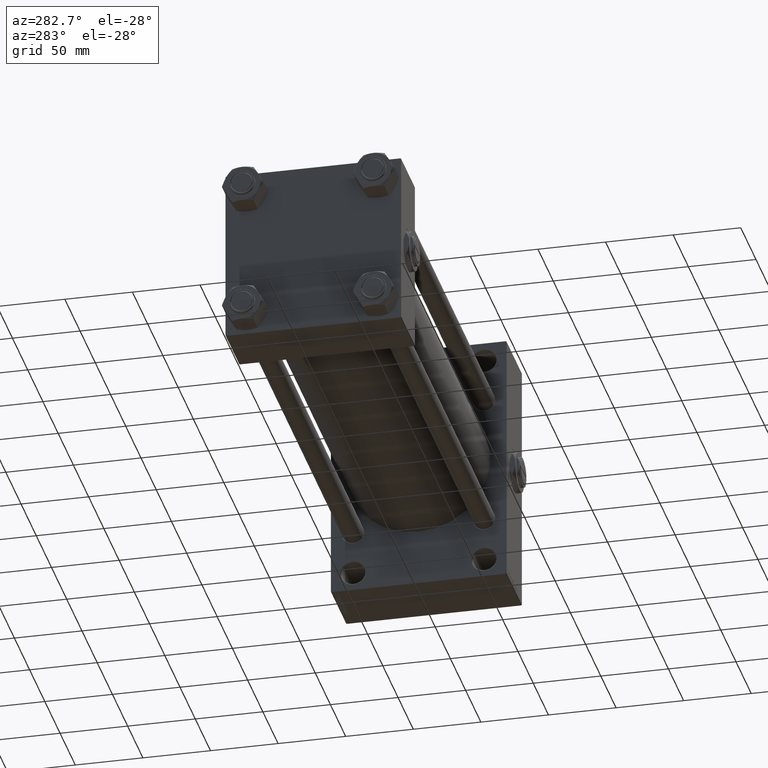
[diagram: clean part render]
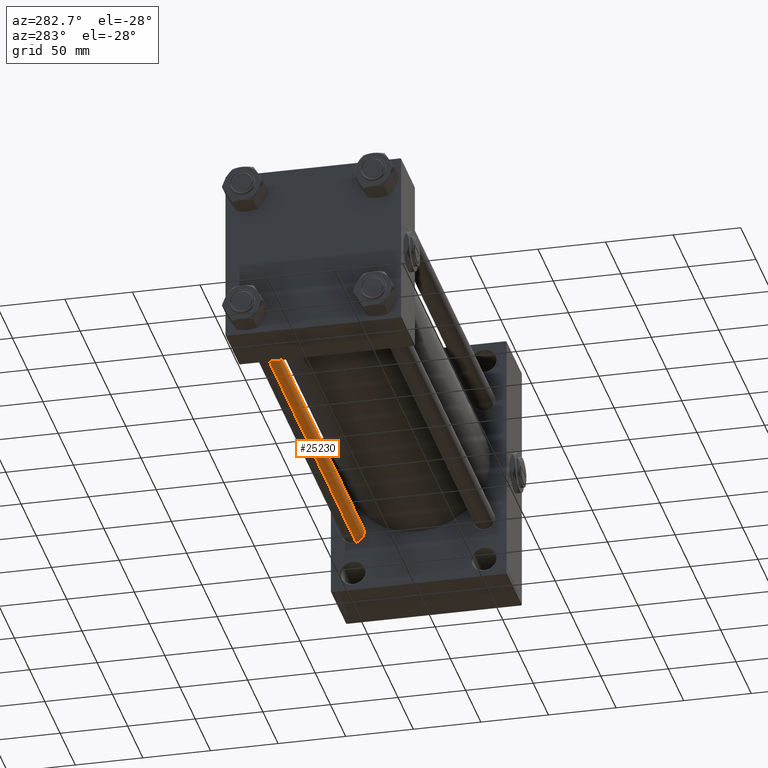
[diagram: same view with one face highlighted and labeled with its STEP entity id]
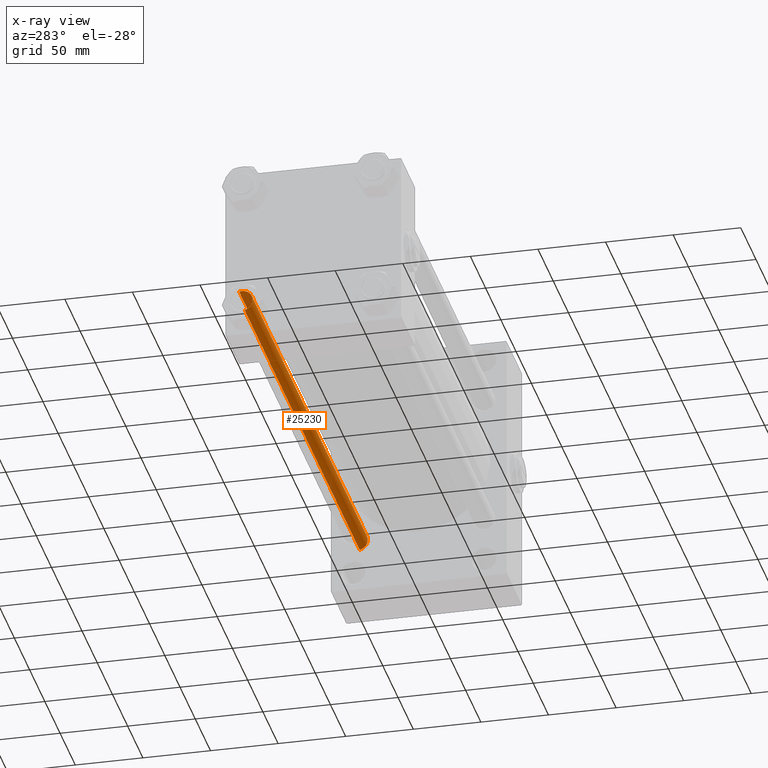
[diagram: x-ray of the same camera — body ghosted, the highlighted face saturated]
A machine part, auxiliary view. The second image highlights one B-rep face of the part: STEP entity #25230.
The next image is the same camera in x-ray: the body ghosted, the highlighted face saturated — about 0% of this face is hidden behind the body in this view.
In plain terms, the highlighted cylindrical surface (edge-blend (fillet) strip) has radius 8 mm, axis along (1, -0, 0).
Its self-contained STEP definition (entity closure, byte-faithful):
#1345 = CARTESIAN_POINT ( 'NONE',  ( 8.000000000000000000, 9.797174393178825657E-16, 379.0000000000000000 ) ) ;
#1782 = DIRECTION ( 'NONE',  ( -0.000000000000000000, -0.000000000000000000, 1.000000000000000000 ) ) ;
#2384 = CYLINDRICAL_SURFACE ( 'NONE', #41994, 8.000000000000000000 ) ;
#2885 = DIRECTION ( 'NONE',  ( -0.000000000000000000, -0.000000000000000000, -1.000000000000000000 ) ) ;
#4001 = CIRCLE ( 'NONE', #41771, 8.000000000000000000 ) ;
#4985 = AXIS2_PLACEMENT_3D ( 'NONE', #42379, #22509, #41626 ) ;
#5133 = LINE ( 'NONE', #1345, #46647 ) ;
#6631 = EDGE_CURVE ( 'NONE', #33173, #31522, #4001, .T. ) ;
#7261 = EDGE_CURVE ( 'NONE', #46521, #31522, #5133, .T. ) ;
#9751 = CARTESIAN_POINT ( 'NONE',  ( 8.000000000000000000, 9.797174393178825657E-16, 0.4999999999998894218 ) ) ;
#9963 = LINE ( 'NONE', #25561, #47897 ) ;
#10426 = VERTEX_POINT ( 'NONE', #31128 ) ;
#11110 = ORIENTED_EDGE ( 'NONE', *, *, #7261, .F. ) ;
#13484 = DIRECTION ( 'NONE',  ( -1.000000000000000000, 0.000000000000000000, 0.000000000000000000 ) ) ;
#16716 = DIRECTION ( 'NONE',  ( -0.000000000000000000, -0.000000000000000000, -1.000000000000000000 ) ) ;
#19319 = ORIENTED_EDGE ( 'NONE', *, *, #33143, .T. ) ;
#21166 = ORIENTED_EDGE ( 'NONE', *, *, #24322, .T. ) ;
#21447 = CARTESIAN_POINT ( 'NONE',  ( 8.000000000000000000, 9.797174393178825657E-16, 378.4999999999999432 ) ) ;
#21655 = EDGE_LOOP ( 'NONE', ( #11110, #21166, #19319, #22563 ) ) ;
#21787 = DIRECTION ( 'NONE',  ( -0.000000000000000000, -0.000000000000000000, -1.000000000000000000 ) ) ;
#22509 = DIRECTION ( 'NONE',  ( 0.000000000000000000, 0.000000000000000000, -1.000000000000000000 ) ) ;
#22563 = ORIENTED_EDGE ( 'NONE', *, *, #6631, .T. ) ;
#24322 = EDGE_CURVE ( 'NONE', #46521, #10426, #27497, .T. ) ;
#25203 = DIRECTION ( 'NONE',  ( 1.000000000000000000, 0.000000000000000000, 0.000000000000000000 ) ) ;
#25230 = ADVANCED_FACE ( 'NONE', ( #45179 ), #2384, .T. ) ;
#25561 = CARTESIAN_POINT ( 'NONE',  ( -8.000000000000000000, 0.000000000000000000, 379.0000000000000000 ) ) ;
#27497 = CIRCLE ( 'NONE', #4985, 8.000000000000000000 ) ;
#28719 = CARTESIAN_POINT ( 'NONE',  ( 0.000000000000000000, 0.000000000000000000, 0.4999999999998894218 ) ) ;
#31128 = CARTESIAN_POINT ( 'NONE',  ( -8.000000000000000000, 0.000000000000000000, 378.4999999999999432 ) ) ;
#31522 = VERTEX_POINT ( 'NONE', #9751 ) ;
#33143 = EDGE_CURVE ( 'NONE', #10426, #33173, #9963, .T. ) ;
#33173 = VERTEX_POINT ( 'NONE', #43949 ) ;
#40413 = CARTESIAN_POINT ( 'NONE',  ( 0.000000000000000000, 0.000000000000000000, 379.0000000000000000 ) ) ;
#41626 = DIRECTION ( 'NONE',  ( 1.000000000000000000, 0.000000000000000000, 0.000000000000000000 ) ) ;
#41771 = AXIS2_PLACEMENT_3D ( 'NONE', #28719, #1782, #25203 ) ;
#41994 = AXIS2_PLACEMENT_3D ( 'NONE', #40413, #21787, #13484 ) ;
#42379 = CARTESIAN_POINT ( 'NONE',  ( 0.000000000000000000, 0.000000000000000000, 378.4999999999999432 ) ) ;
#43949 = CARTESIAN_POINT ( 'NONE',  ( -8.000000000000000000, 0.000000000000000000, 0.4999999999998894218 ) ) ;
#45179 = FACE_OUTER_BOUND ( 'NONE', #21655, .T. ) ;
#46521 = VERTEX_POINT ( 'NONE', #21447 ) ;
#46647 = VECTOR ( 'NONE', #16716, 1000.000000000000000 ) ;
#47897 = VECTOR ( 'NONE', #2885, 1000.000000000000000 ) ;